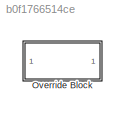
MODEL slx_b0f1766514ce
KIND library
CONFIG AbsTol = auto
CONFIG EnableMultiTasking = off
CONFIG FixedStep = auto
CONFIG MaxStep = auto
CONFIG MinStep = auto
CONFIG RelTol = 1e-3
CONFIG SampleTimeConstraint = Unconstrained
CONFIG Solver = VariableStepAuto
CONFIG SolverName = VariableStepAuto
CONFIG StartTime = 0.0
CONFIG StopTime = 10.0
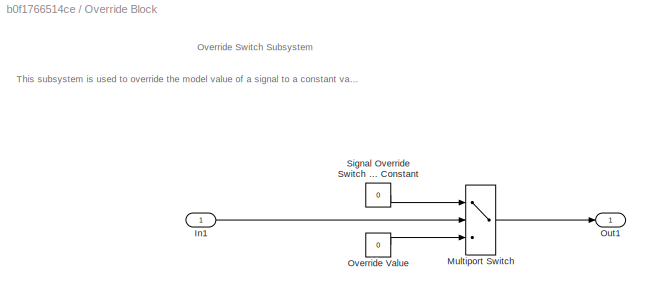
BLOCK [SubSystem] Override Block
  Ports = [1, 1]
  RequestExecContextInheritance = off
  Variant = off
BLOCK [Inport] Override Block/In1
  IconDisplay = Port number
BLOCK [MultiPortSwitch] Override Block/Multiport Switch
  DataPortOrder = Zero-based contiguous
  InputSameDT = off
  Inputs = 2
  Ports = [3, 1]
  SaturateOnIntegerOverflow = off
  zeroidx = on
BLOCK [Outport] Override Block/Out1
  IconDisplay = Port number
BLOCK [Constant] Override Block/Override Value
  OutDataTypeStr = double
  Value = 0
BLOCK [Constant] Override Block/Signal Override Switch 0 = Use Model 1 = Use Constant
  Value = 0
ANNOTATION Override Block: Override Switch Subsystem
ANNOTATION Override Block: This subsystem is used to override the model value of a signal to a constant value
LINE Override Block/In1:1 -> Override Block/Multiport Switch:2
LINE Override Block/Multiport Switch:1 -> Override Block/Out1:1
LINE Override Block/Override Value:1 -> Override Block/Multiport Switch:3
LINE Override Block/Signal Override Switch 0 = Use Model 1 = Use Constant:1 -> Override Block/Multiport Switch:1
